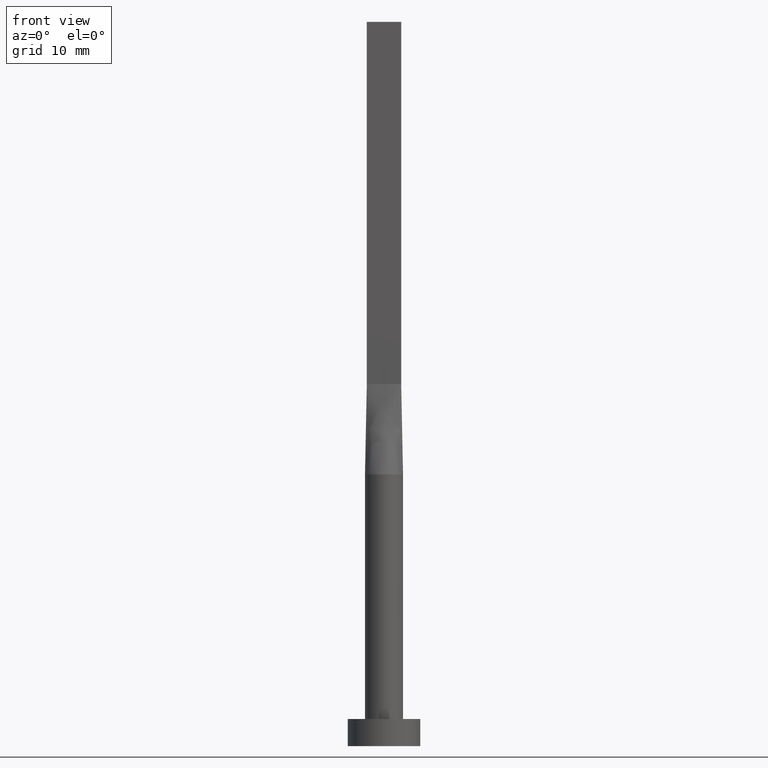
[diagram: clean part render]
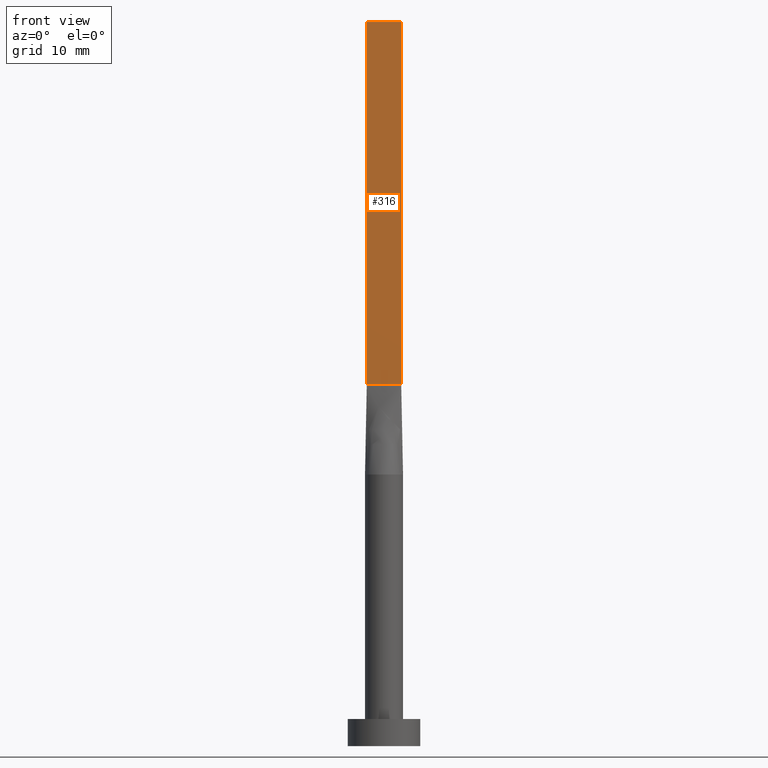
[diagram: same view with one face highlighted and labeled with its STEP entity id]
A machine part, front view. The second image highlights one B-rep face of the part: STEP entity #316.
In plain terms, the highlighted planar face has unit normal (0, 1, -0).
Its self-contained STEP definition (entity closure, byte-faithful):
#13 = CARTESIAN_POINT ( 'NONE',  ( -1.899999999999999911, -0.3999999999999995781, 80.00000000000000000 ) ) ;
#18 = VECTOR ( 'NONE', #141, 1000.000000000000000 ) ;
#38 = CARTESIAN_POINT ( 'NONE',  ( -1.899999999999999911, -0.3999999999999995781, 40.00000000000000000 ) ) ;
#42 = DIRECTION ( 'NONE',  ( -0.000000000000000000, -0.000000000000000000, -1.000000000000000000 ) ) ;
#53 = CARTESIAN_POINT ( 'NONE',  ( -1.899999999999999911, -0.3999999999999995781, 40.00000000000000000 ) ) ;
#73 = EDGE_LOOP ( 'NONE', ( #222, #294, #217, #250 ) ) ;
#76 = VERTEX_POINT ( 'NONE', #248 ) ;
#81 = CARTESIAN_POINT ( 'NONE',  ( -1.899999999999999911, -0.3999999999999995781, 80.00000000000000000 ) ) ;
#91 = DIRECTION ( 'NONE',  ( -1.000000000000000000, 5.706327223607918787E-17, 0.000000000000000000 ) ) ;
#103 = DIRECTION ( 'NONE',  ( 1.000000000000000000, -5.706327223607920020E-17, 0.000000000000000000 ) ) ;
#141 = DIRECTION ( 'NONE',  ( -0.000000000000000000, -0.000000000000000000, -1.000000000000000000 ) ) ;
#183 = EDGE_CURVE ( 'NONE', #76, #206, #313, .T. ) ;
#188 = PLANE ( 'NONE',  #318 ) ;
#190 = LINE ( 'NONE', #505, #18 ) ;
#206 = VERTEX_POINT ( 'NONE', #453 ) ;
#216 = VERTEX_POINT ( 'NONE', #307 ) ;
#217 = ORIENTED_EDGE ( 'NONE', *, *, #533, .F. ) ;
#222 = ORIENTED_EDGE ( 'NONE', *, *, #288, .T. ) ;
#224 = LINE ( 'NONE', #38, #419 ) ;
#246 = VECTOR ( 'NONE', #42, 1000.000000000000000 ) ;
#248 = CARTESIAN_POINT ( 'NONE',  ( 1.899999999999999023, -0.3999999999999998002, 80.00000000000000000 ) ) ;
#250 = ORIENTED_EDGE ( 'NONE', *, *, #358, .T. ) ;
#288 = EDGE_CURVE ( 'NONE', #370, #206, #224, .T. ) ;
#294 = ORIENTED_EDGE ( 'NONE', *, *, #183, .F. ) ;
#307 = CARTESIAN_POINT ( 'NONE',  ( -1.899999999999999911, -0.3999999999999995781, 80.00000000000000000 ) ) ;
#313 = LINE ( 'NONE', #398, #246 ) ;
#316 = ADVANCED_FACE ( 'NONE', ( #581 ), #188, .F. ) ;
#318 = AXIS2_PLACEMENT_3D ( 'NONE', #81, #497, #91 ) ;
#358 = EDGE_CURVE ( 'NONE', #216, #370, #190, .T. ) ;
#370 = VERTEX_POINT ( 'NONE', #53 ) ;
#375 = VECTOR ( 'NONE', #103, 1000.000000000000000 ) ;
#398 = CARTESIAN_POINT ( 'NONE',  ( 1.899999999999999023, -0.3999999999999998002, 80.00000000000000000 ) ) ;
#401 = DIRECTION ( 'NONE',  ( 1.000000000000000000, -5.706327223607918787E-17, 0.000000000000000000 ) ) ;
#419 = VECTOR ( 'NONE', #401, 1000.000000000000000 ) ;
#453 = CARTESIAN_POINT ( 'NONE',  ( 1.899999999999999023, -0.3999999999999998002, 40.00000000000000000 ) ) ;
#497 = DIRECTION ( 'NONE',  ( 5.706327223607918787E-17, 1.000000000000000000, -0.000000000000000000 ) ) ;
#505 = CARTESIAN_POINT ( 'NONE',  ( -1.899999999999999911, -0.3999999999999995781, 80.00000000000000000 ) ) ;
#511 = LINE ( 'NONE', #13, #375 ) ;
#533 = EDGE_CURVE ( 'NONE', #216, #76, #511, .T. ) ;
#581 = FACE_OUTER_BOUND ( 'NONE', #73, .T. ) ;